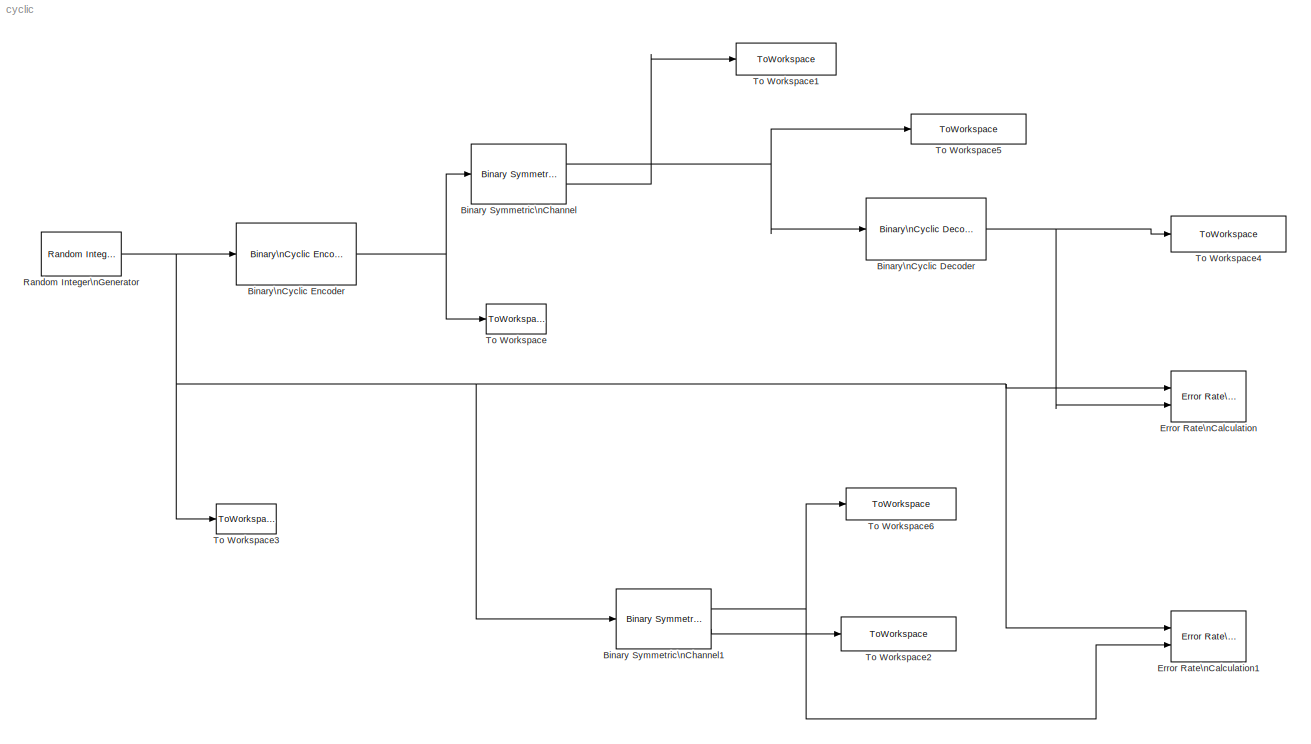
MODEL cyclic
KIND model
BLOCK [Reference] Binary Symmetric\nChannel  REF=commchan3/Binary Symmetric\nChannel
  E = on
  P = 0.6
  Ports = [1, 2]
  SID = 4
  SourceBlock = commchan3/Binary Symmetric\nChannel
  SourceType = Binary Symmetric Channel
  outDtype = double
  s = 71
BLOCK [Reference] Binary Symmetric\nChannel1  REF=commchan3/Binary Symmetric\nChannel
  E = on
  P = 0.6
  Ports = [1, 2]
  SID = 13
  SourceBlock = commchan3/Binary Symmetric\nChannel
  SourceType = Binary Symmetric Channel
  outDtype = double
  s = 71
BLOCK [Reference] Binary\nCyclic Decoder  REF=commblkcod2/Binary\nCyclic Decoder
  Ports = [1, 1]
  SID = 12
  SourceBlock = commblkcod2/Binary\nCyclic Decoder
  SourceType = Binary Cyclic Decoder
  n = 7
  p = 4
BLOCK [Reference] Binary\nCyclic Encoder  REF=commblkcod2/Binary\nCyclic Encoder
  Ports = [1, 1]
  SID = 3
  SourceBlock = commblkcod2/Binary\nCyclic Encoder
  SourceType = Binary Cyclic Encoder
  n = 7
  p = 4
BLOCK [Reference] Error Rate\nCalculation  REF=commsink2/Error Rate\nCalculation
  N = 0
  PMode = Workspace
  Ports = [2]
  RsMode2 = off
  SID = 11
  SourceBlock = commsink2/Error Rate\nCalculation
  SourceType = Error Rate Calculation
  WsName = ErrorVec
  cp_mode = Entire frame
  maxBits = 1e6
  numErr = 100
  st_delay = 0
  stop = off
  subframe = []
BLOCK [Reference] Error Rate\nCalculation1  REF=commsink2/Error Rate\nCalculation
  N = 0
  PMode = Workspace
  Ports = [2]
  RsMode2 = off
  SID = 14
  SourceBlock = commsink2/Error Rate\nCalculation
  SourceType = Error Rate Calculation
  WsName = ErrorVec1
  cp_mode = Entire frame
  maxBits = 1e6
  numErr = 100
  st_delay = 0
  stop = off
  subframe = []
BLOCK [Reference] Random Integer\nGenerator  REF=commrandsrc2/Random Integer\nGenerator
  Ports = [0, 1]
  SID = 2
  SourceBlock = commrandsrc2/Random Integer\nGenerator
  SourceType = Random Integer Generator
  Ts = 1
  frameBased = on
  mul = 2
  orient = off
  outDataType = double
  sampPerFrame = 4
  seed = 0
BLOCK [ToWorkspace] To Workspace
  MaxDataPoints = inf
  Ports = [1]
  SID = 5
  SampleTime = -1
  SaveFormat = Array
  VariableName = coded_data
BLOCK [ToWorkspace] To Workspace1
  MaxDataPoints = inf
  Ports = [1]
  SID = 6
  SampleTime = -1
  SaveFormat = Array
  VariableName = error_vector1
BLOCK [ToWorkspace] To Workspace2
  MaxDataPoints = inf
  Ports = [1]
  SID = 7
  SampleTime = -1
  SaveFormat = Array
  VariableName = error_vector2
BLOCK [ToWorkspace] To Workspace3
  MaxDataPoints = inf
  Ports = [1]
  SID = 8
  SampleTime = -1
  SaveFormat = Array
  VariableName = data
BLOCK [ToWorkspace] To Workspace4
  MaxDataPoints = inf
  Ports = [1]
  SID = 9
  SampleTime = -1
  SaveFormat = Array
  VariableName = decoded_data
BLOCK [ToWorkspace] To Workspace5
  MaxDataPoints = inf
  Ports = [1]
  SID = 10
  SampleTime = -1
  SaveFormat = Array
  VariableName = corrupted_data1
BLOCK [ToWorkspace] To Workspace6
  MaxDataPoints = inf
  Ports = [1]
  SID = 15
  SampleTime = -1
  SaveFormat = Array
  VariableName = corrupted_data2
NET Binary Symmetric\nChannel1:1 -> Error Rate\nCalculation1:2, To Workspace6:1
LINE Binary Symmetric\nChannel1:2 -> To Workspace2:1
NET Binary Symmetric\nChannel:1 -> Binary\nCyclic Decoder:1, To Workspace5:1
LINE Binary Symmetric\nChannel:2 -> To Workspace1:1
NET Binary\nCyclic Decoder:1 -> Error Rate\nCalculation:2, To Workspace4:1
NET Binary\nCyclic Encoder:1 -> Binary Symmetric\nChannel:1, To Workspace:1
NET Random Integer\nGenerator:1 -> Binary Symmetric\nChannel1:1, Binary\nCyclic Encoder:1, Error Rate\nCalculation1:1, Error Rate\nCalculation:1, To Workspace3:1
note: NET lines group one-source signal fan-out (src -> all destinations, sorted); 1:1 wires keep LINE
